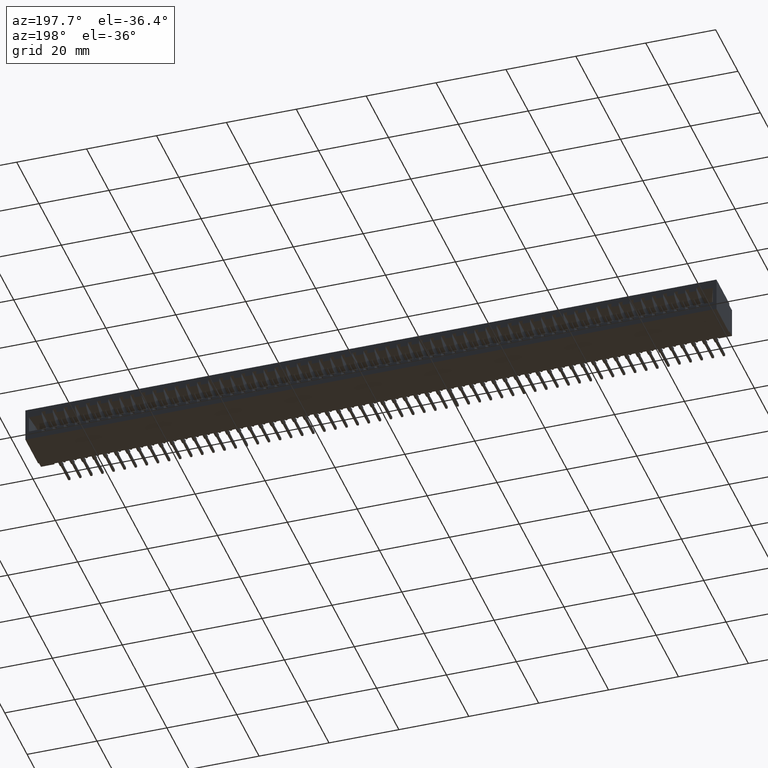
[diagram: clean part render]
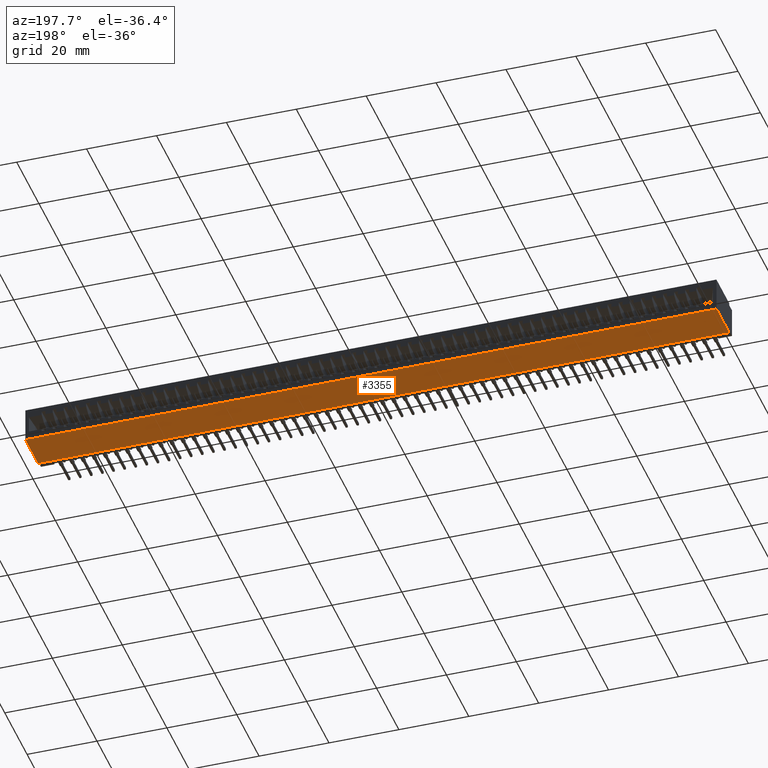
[diagram: same view with one face highlighted and labeled with its STEP entity id]
A machine part, auxiliary view. The second image highlights one B-rep face of the part: STEP entity #3355.
In plain terms, the highlighted planar face has unit normal (0, 0, 1).
Its self-contained STEP definition (entity closure, byte-faithful):
#3355 = ADVANCED_FACE ( 'NONE', ( #35222 ), #61981, .F. ) ;
#4313 = LINE ( 'NONE', #72069, #35774 ) ;
#4902 = VERTEX_POINT ( 'NONE', #16875 ) ;
#7305 = CARTESIAN_POINT ( 'NONE',  ( 0.0000000000000000000, 0.5500000000000000444, -0.3900000000000000133 ) ) ;
#10789 = CARTESIAN_POINT ( 'NONE',  ( 0.0000000000000000000, 0.5500000000000000444, -0.3900000000000000133 ) ) ;
#13514 = ORIENTED_EDGE ( 'NONE', *, *, #41718, .T. ) ;
#16875 = CARTESIAN_POINT ( 'NONE',  ( 0.0000000000000000000, 0.1000000000000000056, -0.3900000000000000133 ) ) ;
#20679 = ORIENTED_EDGE ( 'NONE', *, *, #73342, .F. ) ;
#27234 = DIRECTION ( 'NONE',  ( 1.000000000000000000, 0.0000000000000000000, -0.0000000000000000000 ) ) ;
#30111 = VECTOR ( 'NONE', #62122, 39.37007874015748143 ) ;
#31511 = DIRECTION ( 'NONE',  ( -0.0000000000000000000, -1.000000000000000000, -0.0000000000000000000 ) ) ;
#32031 = EDGE_CURVE ( 'NONE', #61619, #74587, #43799, .T. ) ;
#35222 = FACE_OUTER_BOUND ( 'NONE', #52495, .T. ) ;
#35774 = VECTOR ( 'NONE', #31511, 39.37007874015748143 ) ;
#36814 = VECTOR ( 'NONE', #65174, 39.37007874015748143 ) ;
#40585 = DIRECTION ( 'NONE',  ( 0.0000000000000000000, 0.0000000000000000000, 1.000000000000000000 ) ) ;
#40771 = CARTESIAN_POINT ( 'NONE',  ( 7.785000000000000142, 0.5500000000000000444, -0.3900000000000000133 ) ) ;
#41718 = EDGE_CURVE ( 'NONE', #77446, #4902, #84989, .T. ) ;
#43799 = LINE ( 'NONE', #10789, #36814 ) ;
#44006 = EDGE_CURVE ( 'NONE', #61619, #77446, #4313, .T. ) ;
#50710 = AXIS2_PLACEMENT_3D ( 'NONE', #55741, #40585, #27234 ) ;
#51584 = CARTESIAN_POINT ( 'NONE',  ( 7.785000000000000142, 0.1000000000000000056, -0.3900000000000000133 ) ) ;
#52495 = EDGE_LOOP ( 'NONE', ( #69673, #13514, #20679, #82986 ) ) ;
#55741 = CARTESIAN_POINT ( 'NONE',  ( 0.0000000000000000000, 0.5500000000000000444, -0.3900000000000000133 ) ) ;
#60619 = CARTESIAN_POINT ( 'NONE',  ( 0.0000000000000000000, 0.5500000000000000444, -0.3900000000000000133 ) ) ;
#61619 = VERTEX_POINT ( 'NONE', #40771 ) ;
#61981 = PLANE ( 'NONE',  #50710 ) ;
#62122 = DIRECTION ( 'NONE',  ( -0.0000000000000000000, -1.000000000000000000, -0.0000000000000000000 ) ) ;
#65174 = DIRECTION ( 'NONE',  ( -1.000000000000000000, -0.0000000000000000000, -0.0000000000000000000 ) ) ;
#68364 = LINE ( 'NONE', #7305, #30111 ) ;
#69673 = ORIENTED_EDGE ( 'NONE', *, *, #44006, .T. ) ;
#72069 = CARTESIAN_POINT ( 'NONE',  ( 7.785000000000000142, 0.5500000000000000444, -0.3900000000000000133 ) ) ;
#73342 = EDGE_CURVE ( 'NONE', #74587, #4902, #68364, .T. ) ;
#74587 = VERTEX_POINT ( 'NONE', #60619 ) ;
#76553 = CARTESIAN_POINT ( 'NONE',  ( 7.785000000000000142, 0.1000000000000000056, -0.3900000000000000133 ) ) ;
#77446 = VERTEX_POINT ( 'NONE', #76553 ) ;
#79530 = VECTOR ( 'NONE', #81273, 39.37007874015748143 ) ;
#81273 = DIRECTION ( 'NONE',  ( -1.000000000000000000, -0.0000000000000000000, -0.0000000000000000000 ) ) ;
#82986 = ORIENTED_EDGE ( 'NONE', *, *, #32031, .F. ) ;
#84989 = LINE ( 'NONE', #51584, #79530 ) ;